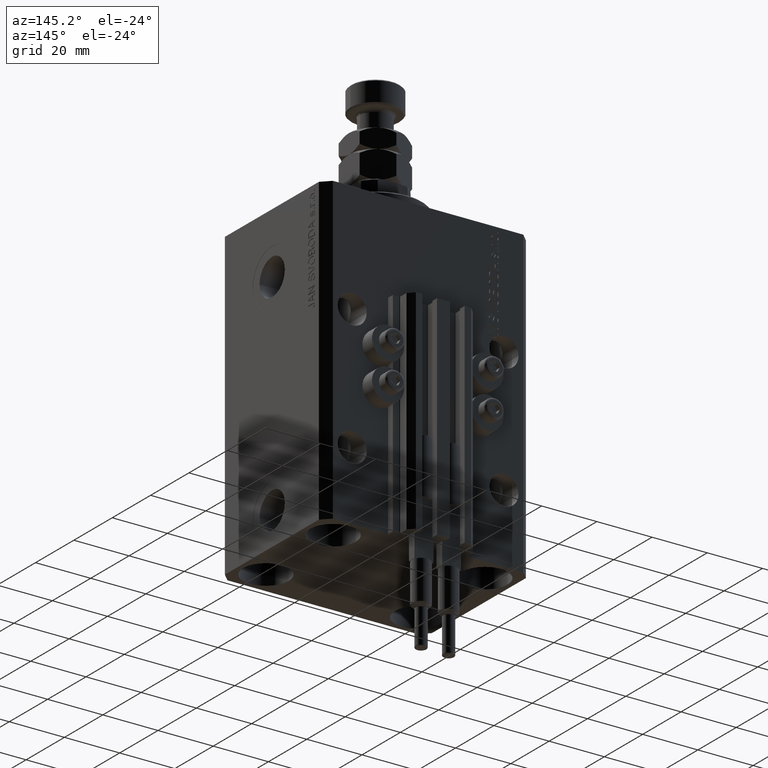
[diagram: clean part render]
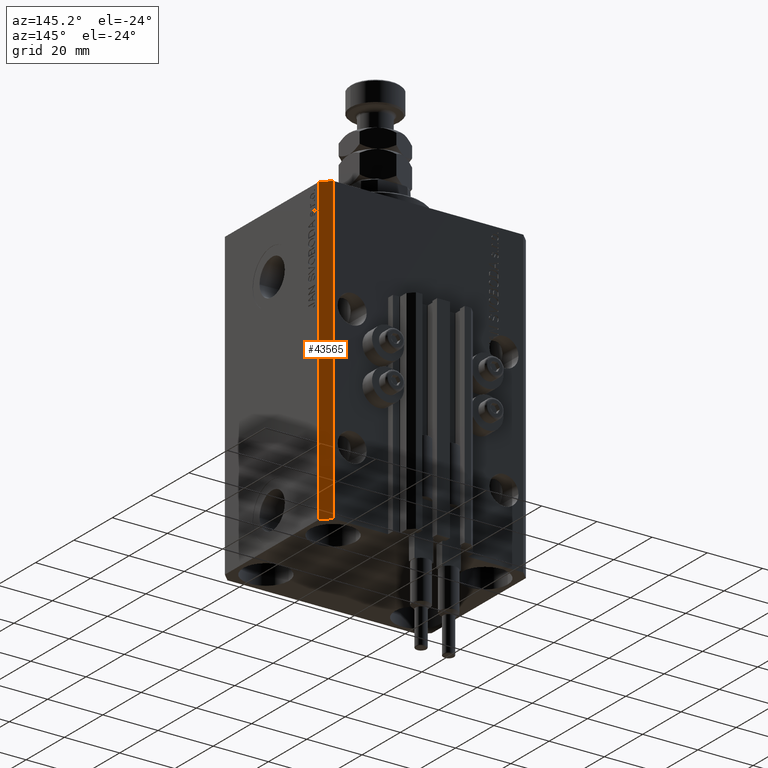
[diagram: same view with one face highlighted and labeled with its STEP entity id]
A machine part, auxiliary view. The second image highlights one B-rep face of the part: STEP entity #43565.
In plain terms, the highlighted planar face has unit normal (0.7071, 0.7071, 0).
Its self-contained STEP definition (entity closure, byte-faithful):
#266 = CARTESIAN_POINT ( 'NONE',  ( 37.50000000000051870, 24.49999999999995381, -110.0000000000000000 ) ) ;
#1660 = VECTOR ( 'NONE', #44155, 1000.000000000000000 ) ;
#3483 = VERTEX_POINT ( 'NONE', #7621 ) ;
#3541 = CARTESIAN_POINT ( 'NONE',  ( 37.50000000000051870, 24.49999999999995381, -110.0000000000000000 ) ) ;
#3664 = ORIENTED_EDGE ( 'NONE', *, *, #17515, .T. ) ;
#6684 = CARTESIAN_POINT ( 'NONE',  ( 37.50000000000051870, 24.49999999999995381, 0.000000000000000000 ) ) ;
#7621 = CARTESIAN_POINT ( 'NONE',  ( 34.50000000000056843, 27.50000000000000000, -110.0000000000000000 ) ) ;
#8389 = DIRECTION ( 'NONE',  ( 0.000000000000000000, 0.000000000000000000, 1.000000000000000000 ) ) ;
#11721 = LINE ( 'NONE', #47344, #24654 ) ;
#12073 = EDGE_CURVE ( 'NONE', #20092, #46168, #43263, .T. ) ;
#12463 = CARTESIAN_POINT ( 'NONE',  ( 34.50000000000056843, 27.50000000000000000, 0.000000000000000000 ) ) ;
#12831 = LINE ( 'NONE', #24286, #1660 ) ;
#17515 = EDGE_CURVE ( 'NONE', #3483, #26383, #12831, .T. ) ;
#18976 = EDGE_CURVE ( 'NONE', #20092, #3483, #38409, .T. ) ;
#19057 = DIRECTION ( 'NONE',  ( -0.7071067811865356934, 0.7071067811865594521, 0.000000000000000000 ) ) ;
#20092 = VERTEX_POINT ( 'NONE', #29042 ) ;
#20348 = DIRECTION ( 'NONE',  ( -0.7071067811865356934, 0.7071067811865594521, 0.000000000000000000 ) ) ;
#22945 = DIRECTION ( 'NONE',  ( 0.7071067811865594521, 0.7071067811865356934, -0.000000000000000000 ) ) ;
#23573 = VECTOR ( 'NONE', #19057, 1000.000000000000114 ) ;
#24286 = CARTESIAN_POINT ( 'NONE',  ( 34.50000000000056843, 27.50000000000000000, -110.0000000000000000 ) ) ;
#24654 = VECTOR ( 'NONE', #20348, 1000.000000000000114 ) ;
#26383 = VERTEX_POINT ( 'NONE', #12463 ) ;
#26447 = EDGE_CURVE ( 'NONE', #46168, #26383, #11721, .T. ) ;
#26603 = ORIENTED_EDGE ( 'NONE', *, *, #18976, .T. ) ;
#27268 = DIRECTION ( 'NONE',  ( -0.7071067811865356934, 0.7071067811865594521, 0.000000000000000000 ) ) ;
#29042 = CARTESIAN_POINT ( 'NONE',  ( 37.50000000000051870, 24.49999999999995381, -110.0000000000000000 ) ) ;
#32556 = CARTESIAN_POINT ( 'NONE',  ( 37.50000000000051870, 24.49999999999995381, -110.0000000000000000 ) ) ;
#34058 = EDGE_LOOP ( 'NONE', ( #45797, #39347, #26603, #3664 ) ) ;
#35152 = PLANE ( 'NONE',  #50330 ) ;
#38409 = LINE ( 'NONE', #3541, #23573 ) ;
#39347 = ORIENTED_EDGE ( 'NONE', *, *, #12073, .F. ) ;
#43263 = LINE ( 'NONE', #32556, #47785 ) ;
#43565 = ADVANCED_FACE ( 'NONE', ( #46113 ), #35152, .T. ) ;
#44155 = DIRECTION ( 'NONE',  ( 0.000000000000000000, 0.000000000000000000, 1.000000000000000000 ) ) ;
#45797 = ORIENTED_EDGE ( 'NONE', *, *, #26447, .F. ) ;
#46113 = FACE_OUTER_BOUND ( 'NONE', #34058, .T. ) ;
#46168 = VERTEX_POINT ( 'NONE', #6684 ) ;
#47344 = CARTESIAN_POINT ( 'NONE',  ( 37.50000000000051870, 24.49999999999995381, 0.000000000000000000 ) ) ;
#47785 = VECTOR ( 'NONE', #8389, 1000.000000000000000 ) ;
#50330 = AXIS2_PLACEMENT_3D ( 'NONE', #266, #22945, #27268 ) ;